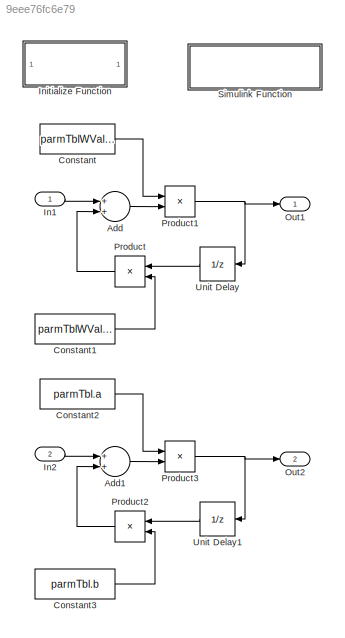
MODEL slx_9eee76fc6e79
KIND model
CONFIG AbsTol = auto
CONFIG EnableMultiTasking = off
CONFIG FixedStep = .01
CONFIG MaxStep = auto
CONFIG MinStep = auto
CONFIG PostLoadFcn = load test_data.mat;
CONFIG RelTol = 1e-3
CONFIG SampleTimeConstraint = Unconstrained
CONFIG Solver = FixedStepDiscrete
CONFIG SolverName = FixedStepDiscrete
CONFIG StartTime = 0.0
CONFIG StopTime = 10
BLOCK [Sum] Add
  InputSameDT = off
  OutDataTypeStr = Inherit: Inherit via internal rule
  Ports = [2, 1]
  SaturateOnIntegerOverflow = off
BLOCK [Sum] Add1
  InputSameDT = off
  OutDataTypeStr = Inherit: Inherit via internal rule
  Ports = [2, 1]
  SaturateOnIntegerOverflow = off
BLOCK [Constant] Constant
  Value = parmTblWVal.a
BLOCK [Constant] Constant1
  Value = parmTblWVal.b
BLOCK [Constant] Constant2
  Value = parmTbl.a
BLOCK [Constant] Constant3
  Value = parmTbl.b
BLOCK [Inport] In1
  BusOutputAsStruct = on
  IconDisplay = Port number
BLOCK [Inport] In2
  BusOutputAsStruct = on
  IconDisplay = Port number
  Port = 2
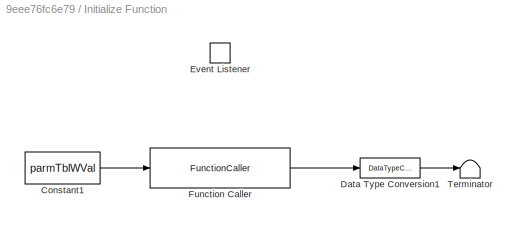
BLOCK [SubSystem] Initialize Function
  Ports = []
  RequestExecContextInheritance = off
  TreatAsAtomicUnit = on
BLOCK [Constant] Initialize Function/Constant1
  OutDataTypeStr = Bus: parmTbl_b
  Value = parmTblWVal
BLOCK [DataTypeConversion] Initialize Function/Data Type Conversion1
  OutDataTypeStr = boolean
  RndMeth = Floor
  SaturateOnIntegerOverflow = off
BLOCK [EventListener] Initialize Function/Event Listener
  DisableCoverage = on
  EventName = reset
BLOCK [FunctionCaller] Initialize Function/Function Caller
  FunctionPrototype = retVal = tblValFcn_f(tbl)
  Ports = [1, 1]
BLOCK [Terminator] Initialize Function/Terminator
BLOCK [Outport] Out1
  IconDisplay = Port number
BLOCK [Outport] Out2
  IconDisplay = Port number
  Port = 2
BLOCK [Product] Product
  InputSameDT = off
  OutDataTypeStr = Inherit: Inherit via internal rule
  Ports = [2, 1]
  RndMeth = Floor
  SaturateOnIntegerOverflow = off
BLOCK [Product] Product1
  InputSameDT = off
  OutDataTypeStr = Inherit: Inherit via internal rule
  Ports = [2, 1]
  RndMeth = Floor
  SaturateOnIntegerOverflow = off
BLOCK [Product] Product2
  InputSameDT = off
  OutDataTypeStr = Inherit: Inherit via internal rule
  Ports = [2, 1]
  RndMeth = Floor
  SaturateOnIntegerOverflow = off
BLOCK [Product] Product3
  InputSameDT = off
  OutDataTypeStr = Inherit: Inherit via internal rule
  Ports = [2, 1]
  RndMeth = Floor
  SaturateOnIntegerOverflow = off
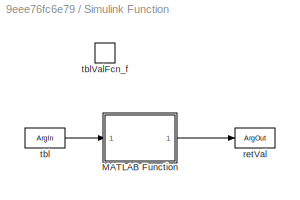
BLOCK [SubSystem] Simulink Function
  Ports = [0, 0, 0, 1]
  RequestExecContextInheritance = off
  TreatAsAtomicUnit = on
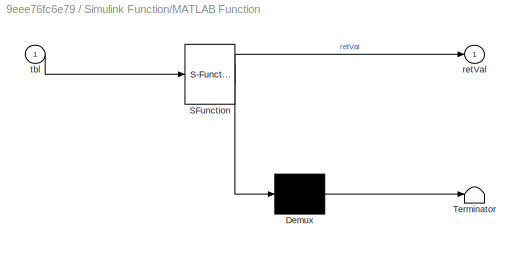
BLOCK [SubSystem] Simulink Function/MATLAB Function
  ErrorFcn = Stateflow.Translate.translate
  PermitHierarchicalResolution = ExplicitOnly
  Ports = [1, 1]
  RequestExecContextInheritance = off
  SFBlockType = MATLAB Function
  TreatAsAtomicUnit = on
BLOCK [Demux] Simulink Function/MATLAB Function/ Demux 
  Outputs = 1
  Ports = [1, 1]
BLOCK [S-Function] Simulink Function/MATLAB Function/ SFunction 
  EnableBusSupport = on
  FunctionName = sf_sfun
  PortCounts = [1 2]
  Ports = [1, 2]
  SFcnIsStateOwnerBlock = off
  SFunctionDeploymentMode = off
  Tag = Stateflow S-Function ParmTblWValidation 2
BLOCK [Terminator] Simulink Function/MATLAB Function/ Terminator 
BLOCK [Outport] Simulink Function/MATLAB Function/retVal
  IconDisplay = Port number
BLOCK [Inport] Simulink Function/MATLAB Function/tbl
  IconDisplay = Port number
BLOCK [ArgOut] Simulink Function/retVal
  ArgumentName = retVal
  DisableCoverage = on
  OutDataTypeStr = int32
BLOCK [ArgIn] Simulink Function/tbl
  ArgumentName = tbl
  DisableCoverage = on
  OutDataTypeStr = Bus: parmTbl_b
BLOCK [TriggerPort] Simulink Function/tblValFcn_f
  FunctionName = tblValFcn_f
  IsSimulinkFunction = on
  Ports = []
  StatesWhenEnabling = held
  TriggerType = function-call
  VariantControl = (inherit)
BLOCK [UnitDelay] Unit Delay
  InputProcessing = Elements as channels (sample based)
  SampleTime = -1
BLOCK [UnitDelay] Unit Delay1
  InputProcessing = Elements as channels (sample based)
  SampleTime = -1
LINE Add1:1 -> Product3:2
LINE Add:1 -> Product1:2
LINE Constant1:1 -> Product:2
LINE Constant2:1 -> Product3:1
LINE Constant3:1 -> Product2:2
LINE Constant:1 -> Product1:1
LINE In1:1 -> Add:1
LINE In2:1 -> Add1:1
LINE Initialize Function/Constant1:1 -> Initialize Function/Function Caller:1
LINE Initialize Function/Data Type Conversion1:1 -> Initialize Function/Terminator:1
LINE Initialize Function/Function Caller:1 -> Initialize Function/Data Type Conversion1:1
NET Product1:1 -> Out1:1, Unit Delay:1
LINE Product2:1 -> Add1:2
NET Product3:1 -> Out2:1, Unit Delay1:1
LINE Product:1 -> Add:2
LINE Simulink Function/MATLAB Function:1 -> Simulink Function/retVal:1
LINE Simulink Function/tbl:1 -> Simulink Function/MATLAB Function:1
LINE Unit Delay1:1 -> Product2:1
LINE Unit Delay:1 -> Product:1
note: NET lines group one-source signal fan-out (src -> all destinations, sorted); 1:1 wires keep LINE
CHART Simulink Function/MATLAB Function states=1 transitions=1
  STATE_LABEL 'eML_blk_kernel()'
  STATE_LABEL 'SCRIPT:\nfunction retVal = fcn(tbl)\n\n    retVal = tblValFcn(tbl);\n    \nend'
